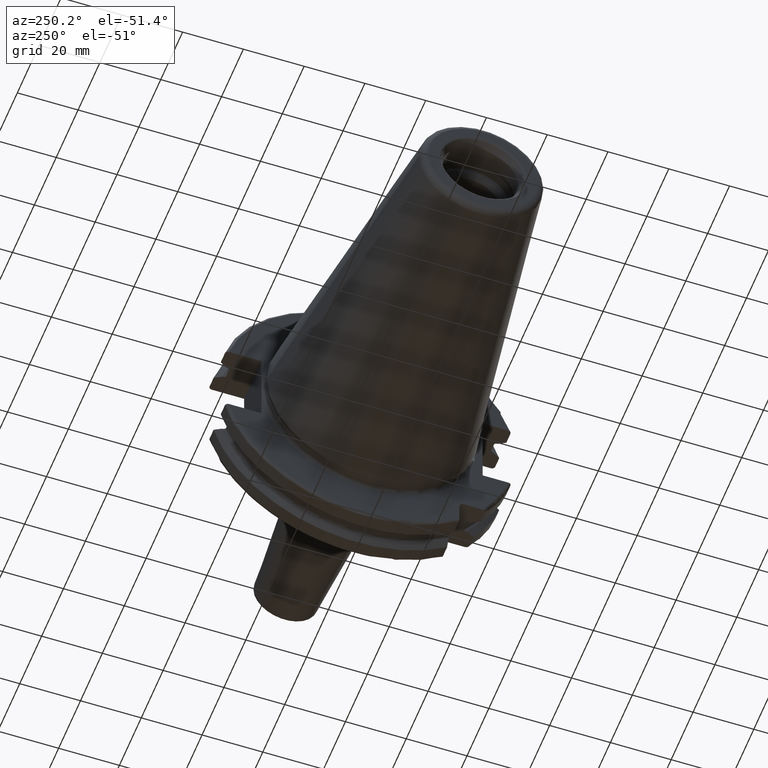
[diagram: clean part render]
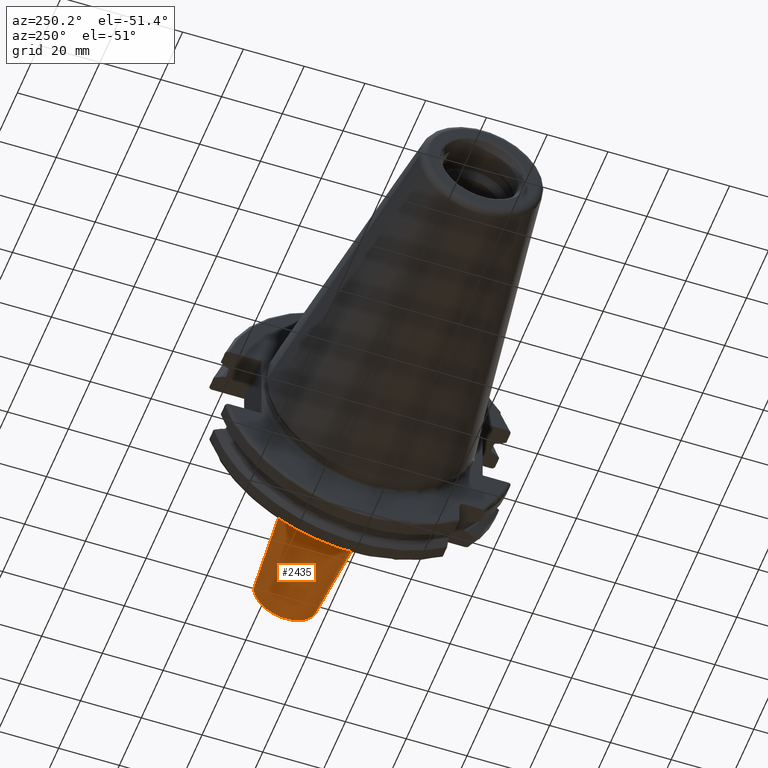
[diagram: same view with one face highlighted and labeled with its STEP entity id]
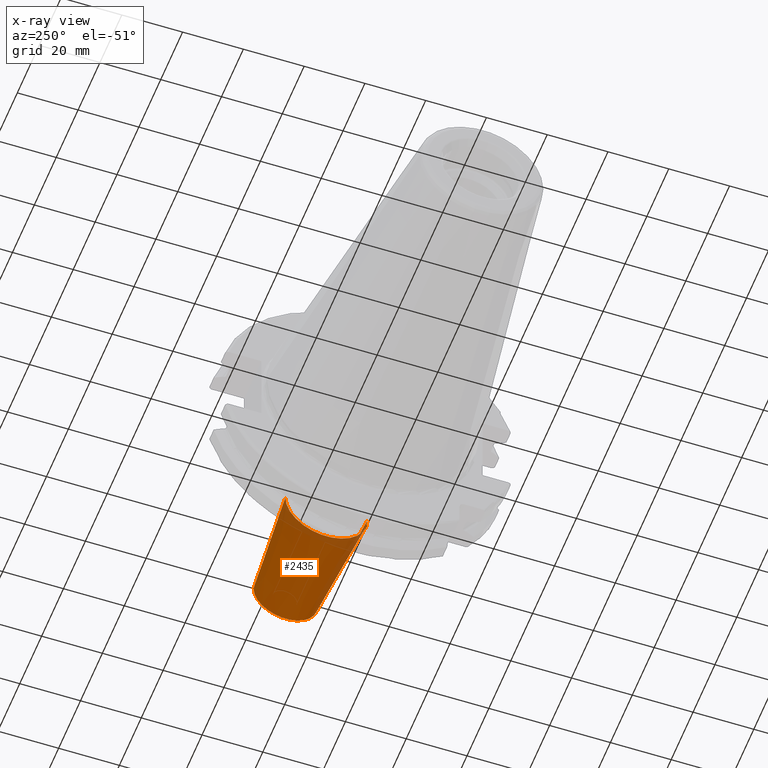
[diagram: x-ray of the same camera — body ghosted, the highlighted face saturated]
A machine part, auxiliary view. The second image highlights one B-rep face of the part: STEP entity #2435.
The next image is the same camera in x-ray: the body ghosted, the highlighted face saturated — about 12% of this face is hidden behind the body in this view.
In plain terms, the highlighted conical surface has half-angle 4.5 deg.
Its self-contained STEP definition (entity closure, byte-faithful):
#925=CARTESIAN_POINT('',(4.188138579148E1,0.E0,0.E0));
#926=DIRECTION('',(-1.E0,0.E0,0.E0));
#927=DIRECTION('',(0.E0,1.E0,0.E0));
#928=AXIS2_PLACEMENT_3D('',#925,#926,#927);
#934=CARTESIAN_POINT('',(7.907845909573E1,0.E0,0.E0));
#935=DIRECTION('',(-1.E0,0.E0,0.E0));
#936=DIRECTION('',(0.E0,1.E0,0.E0));
#937=AXIS2_PLACEMENT_3D('',#934,#935,#936);
#939=DIRECTION('',(-9.969173337331E-1,7.845909572785E-2,2.126715715537E-13));
#940=VECTOR('',#939,3.731209403789E1);
#941=CARTESIAN_POINT('',(7.907845909573E1,1.057252684207E1,
-7.933568403820E-12));
#942=LINE('',#941,#940);
#943=DIRECTION('',(-9.969173337331E-1,-7.845909572785E-2,-2.126627103740E-13));
#944=VECTOR('',#943,3.731209403789E1);
#945=CARTESIAN_POINT('',(7.907845909573E1,-1.057252684207E1,
7.933237774647E-12));
#946=LINE('',#945,#944);
#1432=CARTESIAN_POINT('',(4.188138579148E1,1.35E1,0.E0));
#1433=CARTESIAN_POINT('',(4.188138579148E1,-1.35E1,0.E0));
#1434=VERTEX_POINT('',#1432);
#1435=VERTEX_POINT('',#1433);
#1436=CARTESIAN_POINT('',(7.907845909573E1,1.057252684207E1,0.E0));
#1437=CARTESIAN_POINT('',(7.907845909573E1,-1.057252684207E1,0.E0));
#1438=VERTEX_POINT('',#1436);
#1439=VERTEX_POINT('',#1437);
#2421=CARTESIAN_POINT('',(6.047992244360E1,0.E0,0.E0));
#2422=DIRECTION('',(-1.E0,0.E0,0.E0));
#2423=DIRECTION('',(0.E0,1.E0,0.E0));
#2424=AXIS2_PLACEMENT_3D('',#2421,#2422,#2423);
#2425=CONICAL_SURFACE('',#2424,1.203626342104E1,4.5E0);
#2427=ORIENTED_EDGE('',*,*,#2426,.F.);
#2429=ORIENTED_EDGE('',*,*,#2428,.T.);
#2430=ORIENTED_EDGE('',*,*,#2415,.T.);
#2432=ORIENTED_EDGE('',*,*,#2431,.F.);
#2433=EDGE_LOOP('',(#2427,#2429,#2430,#2432));
#2434=FACE_OUTER_BOUND('',#2433,.F.);
#2435=ADVANCED_FACE('',(#2434),#2425,.T.);
#929=CIRCLE('',#928,1.35E1);
#938=CIRCLE('',#937,1.057252684207E1);
#2415=EDGE_CURVE('',#1434,#1435,#929,.T.);
#2426=EDGE_CURVE('',#1438,#1439,#938,.T.);
#2428=EDGE_CURVE('',#1438,#1434,#942,.T.);
#2431=EDGE_CURVE('',#1439,#1435,#946,.T.);